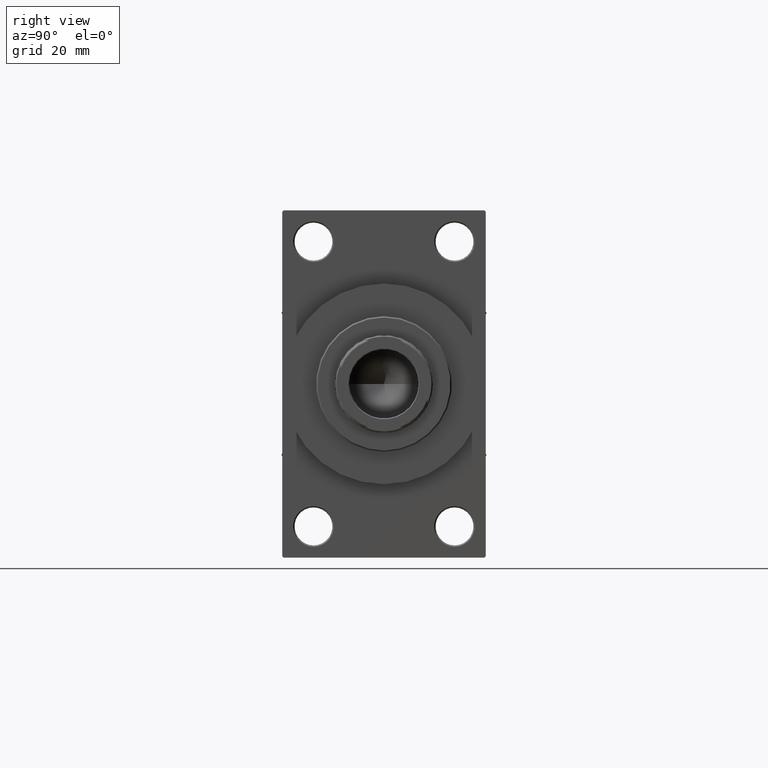
[diagram: clean part render]
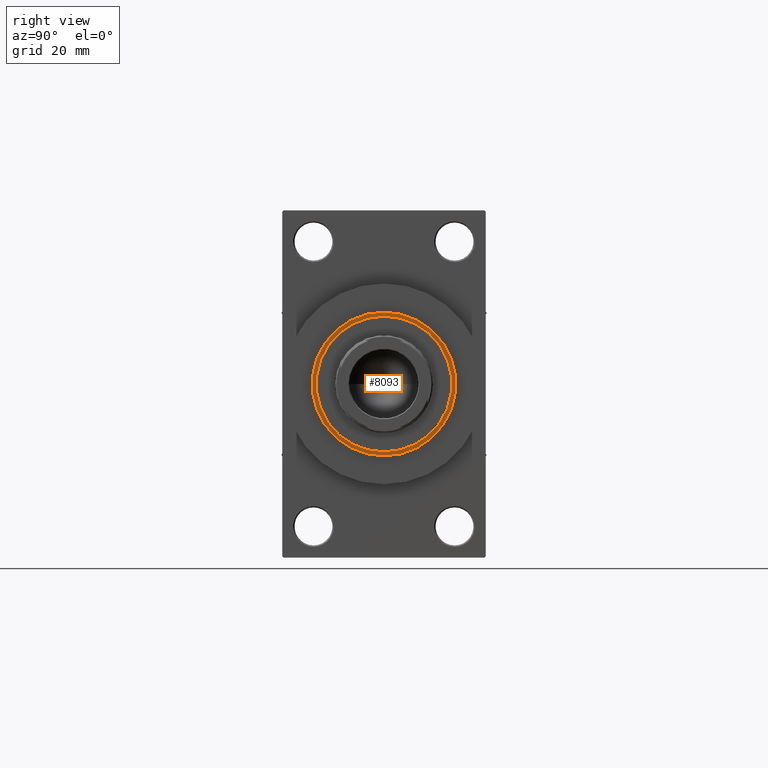
[diagram: same view with one face highlighted and labeled with its STEP entity id]
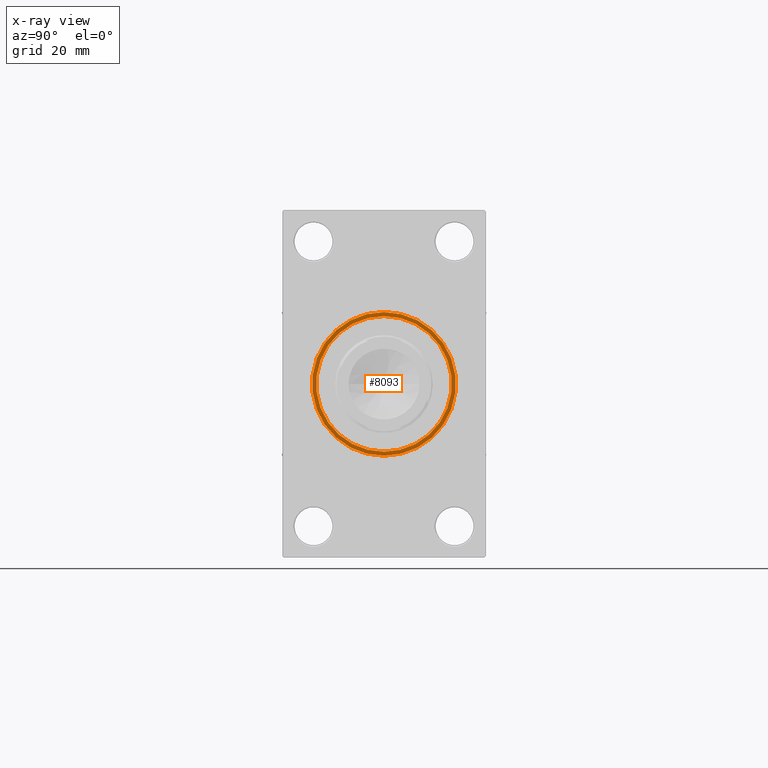
[diagram: x-ray of the same camera — body ghosted, the highlighted face saturated]
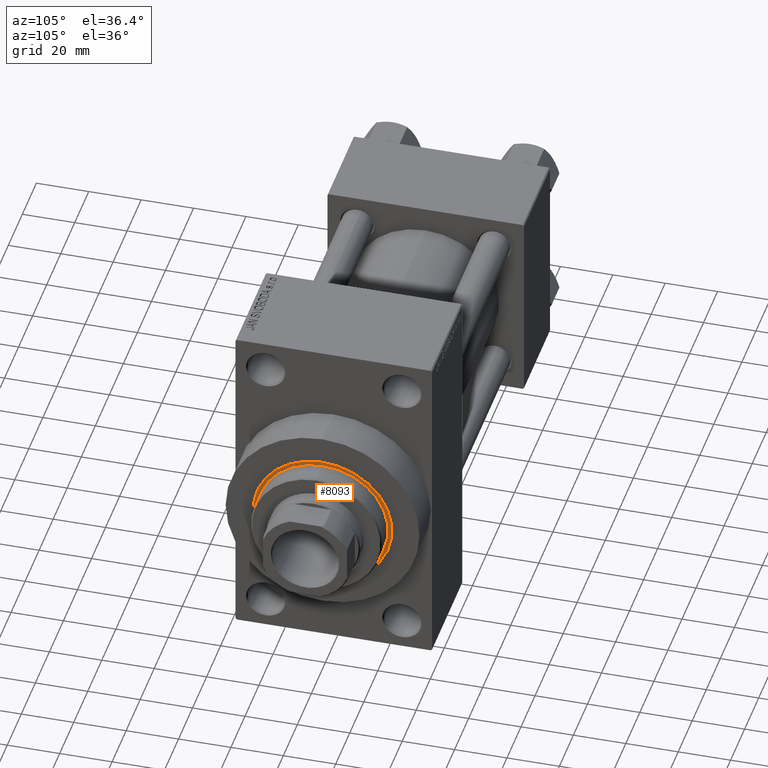
[diagram: same view with one face highlighted and labeled with its STEP entity id]
A machine part, right view. The second image highlights one B-rep face of the part: STEP entity #8093.
The next image is the same camera in x-ray: the body ghosted, the highlighted face saturated — about 0% of this face is hidden behind the body in this view.
A second angle (auxiliary view) of the same face is appended — the face is thin or edge-on in the first view.
In plain terms, the highlighted planar face has unit normal (1, -0, -0).
Its self-contained STEP definition (entity closure, byte-faithful):
#2805 = AXIS2_PLACEMENT_3D ( 'NONE', #43992, #40394, #7686 ) ;
#2834 = CIRCLE ( 'NONE', #2805, 26.50000000000000355 ) ;
#3004 = CIRCLE ( 'NONE', #29679, 25.00000000000000000 ) ;
#3759 = CARTESIAN_POINT ( 'NONE',  ( 26.50000000000000355, 3.245314017740486554E-15, 43.25999999999999801 ) ) ;
#4735 = AXIS2_PLACEMENT_3D ( 'NONE', #36891, #18278, #7517 ) ;
#5145 = VERTEX_POINT ( 'NONE', #3759 ) ;
#5734 = EDGE_LOOP ( 'NONE', ( #29246, #43984 ) ) ;
#7084 = CARTESIAN_POINT ( 'NONE',  ( -25.00000000000000000, 0.000000000000000000, 43.25999999999999801 ) ) ;
#7517 = DIRECTION ( 'NONE',  ( 1.000000000000000000, 0.000000000000000000, -0.000000000000000000 ) ) ;
#7686 = DIRECTION ( 'NONE',  ( 1.000000000000000000, 0.000000000000000000, 0.000000000000000000 ) ) ;
#8093 = ADVANCED_FACE ( 'NONE', ( #33532, #11103 ), #40458, .T. ) ;
#8796 = DIRECTION ( 'NONE',  ( 0.000000000000000000, 0.000000000000000000, 1.000000000000000000 ) ) ;
#10315 = DIRECTION ( 'NONE',  ( 0.000000000000000000, 0.000000000000000000, 1.000000000000000000 ) ) ;
#11103 = FACE_OUTER_BOUND ( 'NONE', #18129, .T. ) ;
#13037 = AXIS2_PLACEMENT_3D ( 'NONE', #34577, #8796, #37693 ) ;
#14324 = CIRCLE ( 'NONE', #40888, 25.00000000000000000 ) ;
#18129 = EDGE_LOOP ( 'NONE', ( #34683, #40736 ) ) ;
#18278 = DIRECTION ( 'NONE',  ( 0.000000000000000000, 0.000000000000000000, 1.000000000000000000 ) ) ;
#21788 = EDGE_CURVE ( 'NONE', #34154, #5145, #2834, .T. ) ;
#23765 = EDGE_CURVE ( 'NONE', #27470, #30775, #14324, .T. ) ;
#24388 = DIRECTION ( 'NONE',  ( 0.000000000000000000, 0.000000000000000000, 1.000000000000000000 ) ) ;
#24878 = DIRECTION ( 'NONE',  ( 1.000000000000000000, 0.000000000000000000, 0.000000000000000000 ) ) ;
#27470 = VERTEX_POINT ( 'NONE', #7084 ) ;
#27533 = CIRCLE ( 'NONE', #13037, 26.50000000000000355 ) ;
#27743 = DIRECTION ( 'NONE',  ( 1.000000000000000000, 0.000000000000000000, 0.000000000000000000 ) ) ;
#28469 = CARTESIAN_POINT ( 'NONE',  ( 0.000000000000000000, 0.000000000000000000, 43.25999999999999801 ) ) ;
#28966 = CARTESIAN_POINT ( 'NONE',  ( -26.50000000000000355, 0.000000000000000000, 43.25999999999999801 ) ) ;
#29246 = ORIENTED_EDGE ( 'NONE', *, *, #23765, .F. ) ;
#29679 = AXIS2_PLACEMENT_3D ( 'NONE', #28469, #10315, #24878 ) ;
#30775 = VERTEX_POINT ( 'NONE', #47076 ) ;
#31558 = CARTESIAN_POINT ( 'NONE',  ( 0.000000000000000000, 0.000000000000000000, 43.25999999999999801 ) ) ;
#31575 = EDGE_CURVE ( 'NONE', #30775, #27470, #3004, .T. ) ;
#33532 = FACE_BOUND ( 'NONE', #5734, .T. ) ;
#34154 = VERTEX_POINT ( 'NONE', #28966 ) ;
#34577 = CARTESIAN_POINT ( 'NONE',  ( 0.000000000000000000, 0.000000000000000000, 43.25999999999999801 ) ) ;
#34683 = ORIENTED_EDGE ( 'NONE', *, *, #21788, .T. ) ;
#35909 = EDGE_CURVE ( 'NONE', #5145, #34154, #27533, .T. ) ;
#36891 = CARTESIAN_POINT ( 'NONE',  ( 0.000000000000000000, 0.000000000000000000, 43.25999999999999801 ) ) ;
#37693 = DIRECTION ( 'NONE',  ( 1.000000000000000000, 0.000000000000000000, 0.000000000000000000 ) ) ;
#40394 = DIRECTION ( 'NONE',  ( 0.000000000000000000, 0.000000000000000000, 1.000000000000000000 ) ) ;
#40458 = PLANE ( 'NONE',  #4735 ) ;
#40736 = ORIENTED_EDGE ( 'NONE', *, *, #35909, .T. ) ;
#40888 = AXIS2_PLACEMENT_3D ( 'NONE', #31558, #24388, #27743 ) ;
#43984 = ORIENTED_EDGE ( 'NONE', *, *, #31575, .F. ) ;
#43992 = CARTESIAN_POINT ( 'NONE',  ( 0.000000000000000000, 0.000000000000000000, 43.25999999999999801 ) ) ;
#47076 = CARTESIAN_POINT ( 'NONE',  ( 25.00000000000000000, 3.061616997868383043E-15, 43.25999999999999801 ) ) ;